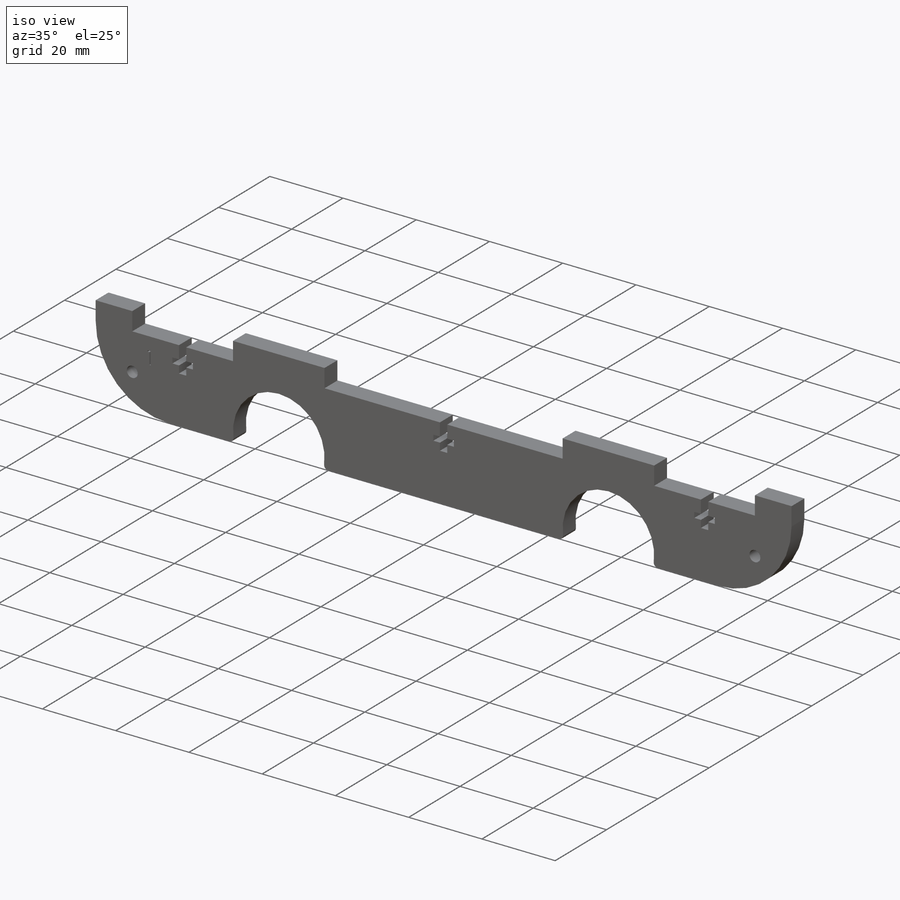
[diagram: iso view]
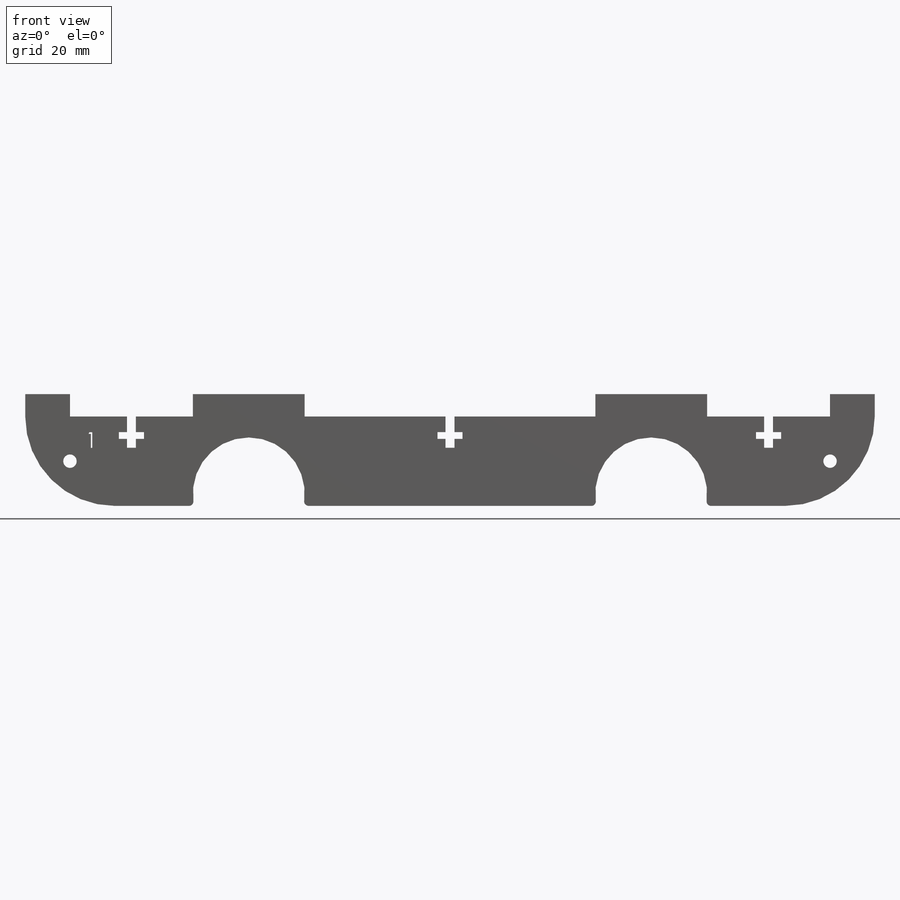
[diagram: front view]
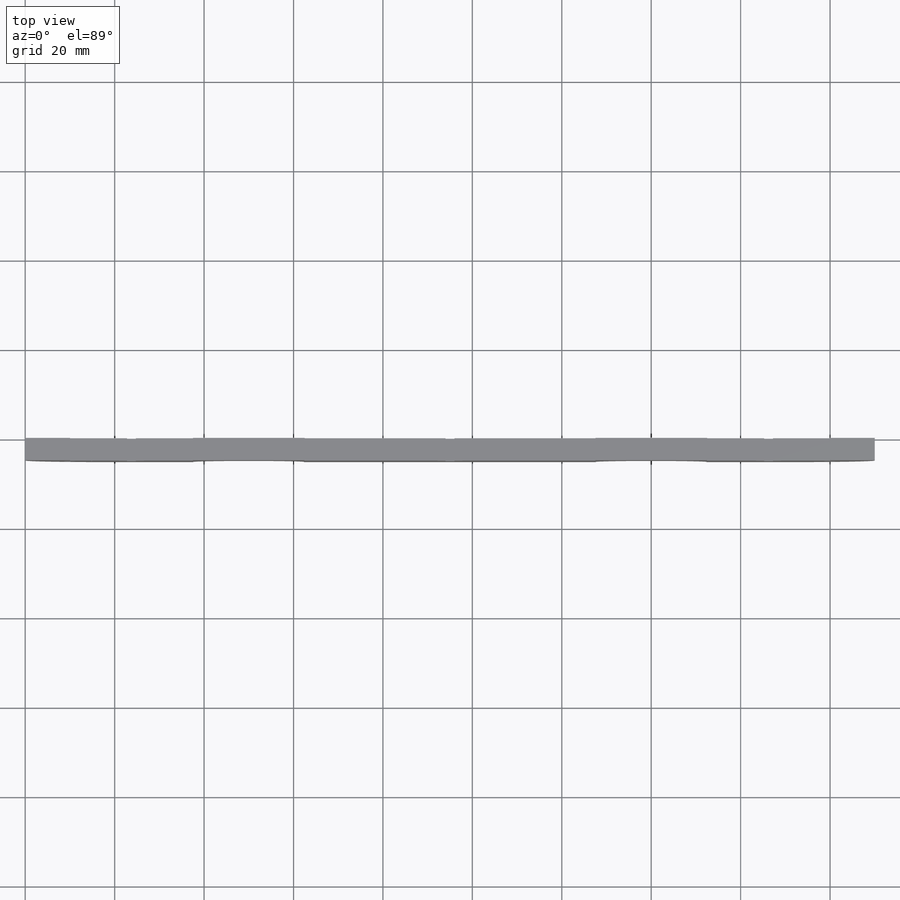
[diagram: top view]
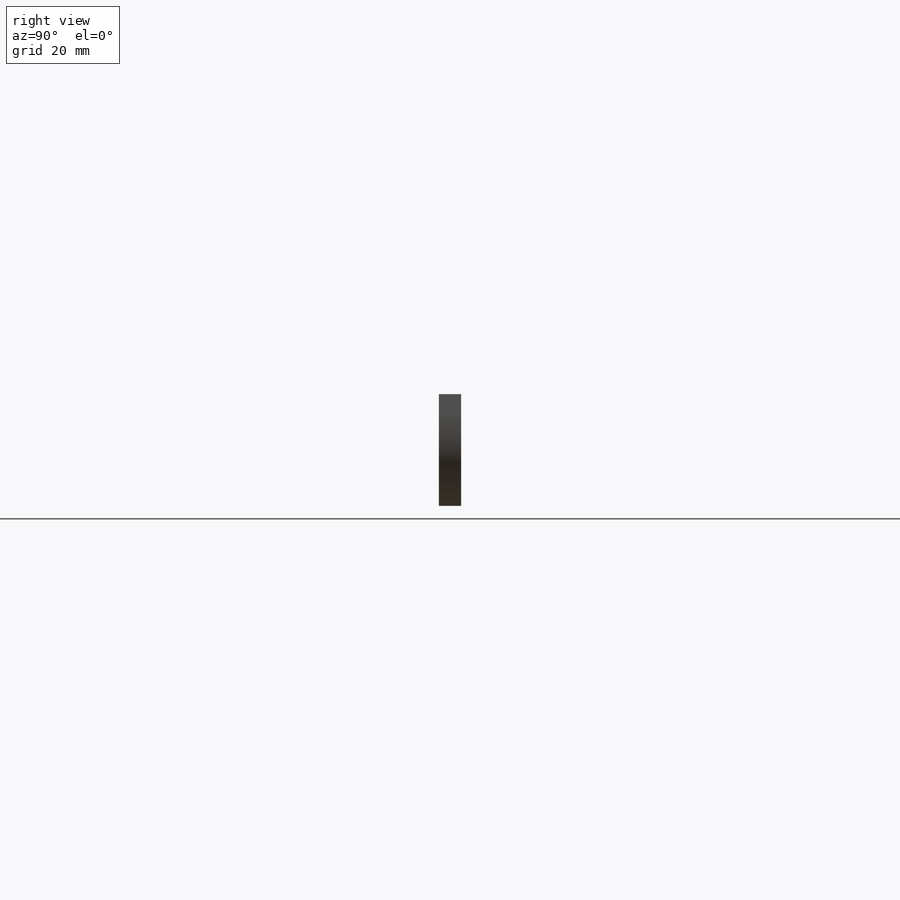
[diagram: right view]
SOLIDWORKS PART (.sldprt)
format: sldprt  version: not decoded by parser v0  size: 353,792 bytes
history: native  units: mm
features: sketch x5, cut_extrude x4, plane x3, fillet x3, material x1, extrude x1 (+9 scaffold rows collapsed)
feature tree (26):
  scaffold x9  (default folders/planes/origin — collapsed)
  material  "Acrílico (médio-alto impacto)"
  plane  "Plano frontal"
  plane  "Plano superior"
  plane  "Plano direito"
  sketch  "Esboço1"  dims[c1.D3=18.0mm c1.D2=40.0mm c2.D3=20.0mm c2.D2=20.0mm c3.D3=20.0mm c3.D1=200.0mm c3.D2=25.0mm c4.D1=200.0mm c4.D2=200.0mm c5.D1=190.0mm c5.D2=25.0mm]
  extrude  "Ressalto-extrusão1"  Depth=5mm
  sketch  "Esboço2"  dims[c1.D1=25.0mm c1.D2=25.0mm c1.D3=25.0mm c2.D1=25.0mm c2.D2=50.0mm]
  cut_extrude  "Corte-extrusão1"  Depth=10mm
  fillet  "Filete2"  Radius=1mm
  sketch  "Esboço3"  dims[c1.D1=10.0mm c1.D2=10.0mm c2.D1=10.0mm c2.D2=10.0mm c3.D1=10.0mm]
  cut_extrude  "Corte-extrusão3"  [1 undecoded]
  sketch  "Esboço5"  dims[c1.D1=7.0mm c1.D2=2.0mm c1.D3=5.0mm c1.D4=1.5mm c1.D5=3.5mm c1.D6=1.5mm c2.D3=1.8mm c2.D6=2.0mm]
  fillet  "Bloco1-2"  [1 undecoded]
  fillet  "Bloco1-3"  Radius=10mm
  cut_extrude  "Corte-extrusão4"  [1 undecoded]
  sketch  "Esboço6"  dims[D1=3.0mm D2=10.0mm D3=10.0mm]
  cut_extrude  "Corte-extrusão5"  [1 undecoded]
decode coverage: 9 of 13 modeling features carry decoded parameters
note: 4 parameter values undecoded
summary: no parameter record found for 4 features
note: suppression state not decoded; provenance and decode notes live in map.json
